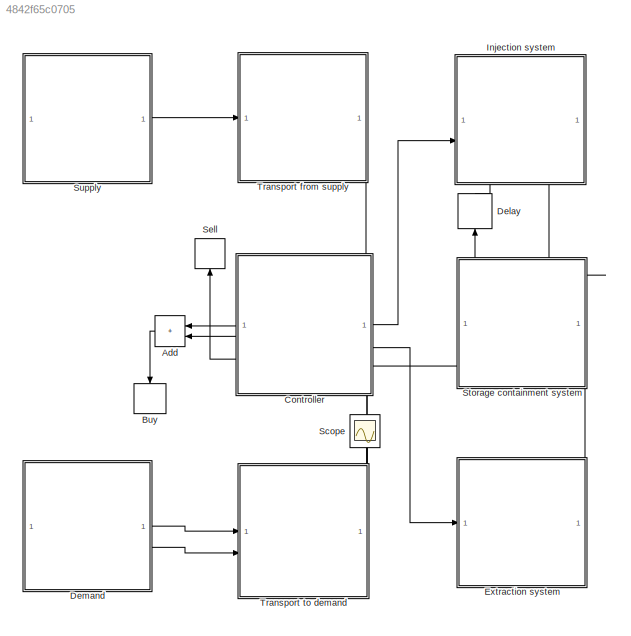
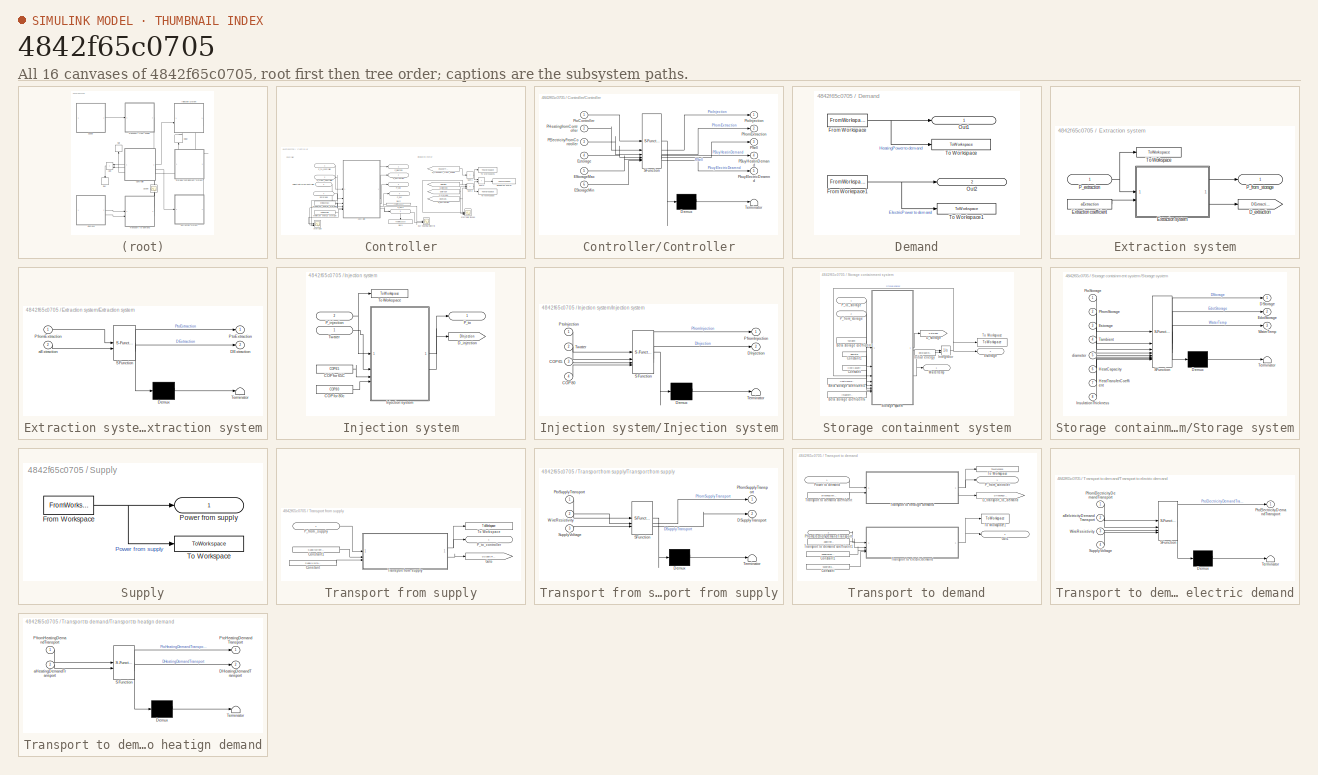
[diagram: thumbnail index - all 16 canvases of the model, root first then tree order]
MODEL slx_4842f65c0705
KIND model
CONFIG AbsTol = auto
CONFIG EnableMultiTasking = off
CONFIG FixedStep = 0.05
CONFIG InitFcn = clear all;\nclose all;\nclc;\n\n% add the data and script directories\naddpath('data','scripts');\n\n% load the constants (units)\nconstants;\n\n% load the simulation parameters \npreprocessing;
CONFIG MaxStep = 0.05
CONFIG MinStep = auto
CONFIG RelTol = 1e-3
CONFIG SampleTimeConstraint = Unconstrained
CONFIG SolverName = FixedStepAuto
CONFIG StartTime = 0.0
CONFIG StopFcn = postprocessing;
CONFIG StopTime = 35040
BLOCK [Sum] Add
  IconShape = rectangular
  NameLocation = top
BLOCK [ToWorkspace] Buy
  FixptAsFi = on
  MaxDataPoints = inf
  NameLocation = left
  SampleTime = -1
  VariableName = PBuy
BLOCK [SubSystem] Controller
  PortSchema = {"entries":[{"content":{"sides":[{"content":{"connectorIds":["Out3","Out4","Out5"]},"type":"ConnectorPlacement.EquallySpacedRectSide","uuid":"4daf33ce-c96a-4783-b5c4-228eed953e01"},{"content":{"connectorIds":["Out1","In4","Out2"],"side":"RIGHT"},"type":"ConnectorPlacement.EquallySpacedRectSide","uuid":"e9942e50-8467-4af8-b79b-80636cbc76e5"},{"content":{"connectorIds":["In1"],"side":"TOP"},"type":"...<+428ch>
BLOCK [ToWorkspace] Controller/Buy1
  FixptAsFi = on
  MaxDataPoints = inf
  NameLocation = left
  SampleTime = -1
  VariableName = PbuyElectricDemand
BLOCK [ToWorkspace] Controller/Buy2
  FixptAsFi = on
  MaxDataPoints = inf
  NameLocation = left
  SampleTime = -1
  VariableName = PbuyHeatingDemand
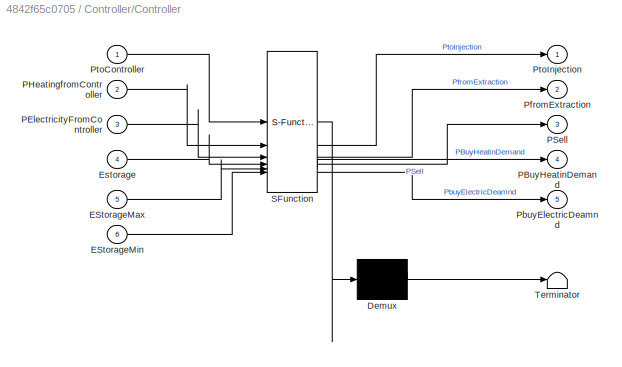
BLOCK [SubSystem] Controller/Controller
  ErrorFcn = Stateflow.Translate.translate
  PermitHierarchicalResolution = ExplicitOnly
  SFBlockType = MATLAB Function
  TreatAsAtomicUnit = on
BLOCK [Demux] Controller/Controller/ Demux 
  Outputs = 1
BLOCK [S-Function] Controller/Controller/ SFunction 
  EnableBusSupport = on
  FunctionName = sf_sfun
  PortCounts = [6 6]
  SFcnIsStateOwnerBlock = off
  SFunctionDeploymentMode = off
  Tag = Stateflow S-Function 3
BLOCK [Terminator] Controller/Controller/ Terminator 
BLOCK [Inport] Controller/Controller/EStorageMax
  Port = 5
BLOCK [Inport] Controller/Controller/EStorageMin
  Port = 6
BLOCK [Inport] Controller/Controller/Estorage
  Port = 4
BLOCK [Outport] Controller/Controller/PBuyHeatinDemand
  Port = 4
BLOCK [Inport] Controller/Controller/PElectricityFromController
  Port = 3
BLOCK [Inport] Controller/Controller/PHeatingfromController
  Port = 2
BLOCK [Outport] Controller/Controller/PSell
  Port = 3
BLOCK [Outport] Controller/Controller/PbuyElectricDeamnd
  Port = 5
BLOCK [Outport] Controller/Controller/PfromExtraction
  Port = 2
BLOCK [Inport] Controller/Controller/PtoController
BLOCK [Outport] Controller/Controller/PtoInjection
BLOCK [From] Controller/D_extraction
  GotoTag = DExtraction
  TagVisibility = global
BLOCK [From] Controller/D_injection
  GotoTag = DInjection
  TagVisibility = global
BLOCK [From] Controller/D_storage
  GotoTag = DStorage
  TagVisibility = global
BLOCK [From] Controller/D_transport_from_supply
  GotoTag = DSupplyTransport
  TagVisibility = global
BLOCK [ToWorkspace] Controller/Dissipated energy
  FixptAsFi = on
  MaxDataPoints = inf
  SampleTime = -1
  VariableName = D
BLOCK [Inport] Controller/Estorage
  IconDisplay = Signal name
  Port = 4
BLOCK [Constant] Controller/Maximum energy storage
  Value = EStorageMax
BLOCK [Constant] Controller/Minimum energy storage
  Value = EStorageMin
BLOCK [Inport] Controller/PElectricityFromController
  Port = 3
BLOCK [Outport] Controller/P_buy
  IconDisplay = Signal name
  Port = 4
BLOCK [Outport] Controller/P_buy1
  IconDisplay = Signal name
  Port = 5
BLOCK [Outport] Controller/P_extraction
  IconDisplay = Signal name
  Port = 2
BLOCK [Inport] Controller/P_from_controller
  IconDisplay = Port number and signal name
  Port = 2
BLOCK [Outport] Controller/P_injection
  IconDisplay = Signal name
BLOCK [Outport] Controller/P_sell
  IconDisplay = Signal name
  Port = 3
BLOCK [Inport] Controller/P_to_controller
  IconDisplay = Port number and signal name
BLOCK [Sum] Controller/Sum1
  IconShape = rectangular
  Inputs = +
BLOCK [Sum] Controller/Sum2
  IconShape = rectangular
  Inputs = +++
BLOCK [Sum] Controller/Sum3
  IconShape = rectangular
BLOCK [ToWorkspace] Controller/To Workspace
  FixptAsFi = on
  MaxDataPoints = inf
  SampleTime = -1
  VariableName = DStorage
BLOCK [ToWorkspace] Controller/To Workspace1
  FixptAsFi = on
  MaxDataPoints = inf
  SampleTime = -1
  VariableName = DTransport
BLOCK [Scope] Controller/buy heating//electric
  Floating = off
  NumInputPorts = 2
  ScopeSpecificationString = Simulink.scopes.TimeScopeBlockCfg('CurrentConfiguration', extmgr.ConfigurationSet(extmgr.Configuration('Core','General UI',true),extmgr.Configuration('Core','Source UI',true),extmgr.Configuration('Sources','WiredSimulink',true,'DataLoggingVariableName','ScopeData1'),extmgr.Configuration('Visuals','Time Domain',true,'SerializedDisplays',{struct('MinYLimReal','-830.45668','MaxYLimReal','7474.1101','...<+1464ch>
BLOCK [Scope] Controller/storrage
  Floating = off
  NumInputPorts = 3
  ScopeSpecificationString = Simulink.scopes.TimeScopeBlockCfg('CurrentConfiguration', extmgr.ConfigurationSet(extmgr.Configuration('Core','General UI',true),extmgr.Configuration('Core','Source UI',true),extmgr.Configuration('Sources','WiredSimulink',true,'DataLoggingVariableName','ScopeData4'),extmgr.Configuration('Visuals','Time Domain',true,'SerializedDisplays',{struct('MinYLimReal','-59016474.27494','MaxYLimReal','5321482...<+1509ch>
BLOCK [Scope] Controller/storrage losses
  Floating = off
  NumInputPorts = 3
  ScopeSpecificationString = Simulink.scopes.TimeScopeBlockCfg('CurrentConfiguration', extmgr.ConfigurationSet(extmgr.Configuration('Core','General UI',true),extmgr.Configuration('Core','Source UI',true),extmgr.Configuration('Sources','WiredSimulink',true,'DataLoggingVariableName','ScopeData1'),extmgr.Configuration('Visuals','Time Domain',true,'SerializedDisplays',{struct('MinYLimReal','-1085.81371','MaxYLimReal','2540.26182'...<+1462ch>
BLOCK [Delay] Delay
  DelayLength = 1
  InitialCondition = 0
  InputPortMap = u0
  NameLocation = right
BLOCK [SubSystem] Demand
BLOCK [FromWorkspace] Demand/From Workspace
  OutputAfterFinalValue = Setting to zero
  VariableName = DemandHeating
BLOCK [FromWorkspace] Demand/From Workspace1
  OutputAfterFinalValue = Setting to zero
  VariableName = DemandElectricity
BLOCK [Outport] Demand/Out1
  IconDisplay = Signal name
BLOCK [Outport] Demand/Out2
  IconDisplay = Signal name
  Port = 2
BLOCK [ToWorkspace] Demand/To Workspace
  FixptAsFi = on
  MaxDataPoints = inf
  SampleTime = -1
  VariableName = PDemandHeating
BLOCK [ToWorkspace] Demand/To Workspace1
  FixptAsFi = on
  MaxDataPoints = inf
  SampleTime = -1
  VariableName = PDemandElectricity
BLOCK [SubSystem] Extraction system
  NameLocation = top
  PortSchema = {"entries":[{"content":{"sides":[{"content":{"connectorIds":[]},"type":"ConnectorPlacement.EquallySpacedRectSide","uuid":"05c5933d-55fc-4e06-853f-fc26d42905f9"},{"content":{"connectorIds":["In1"],"side":"RIGHT"},"type":"ConnectorPlacement.EquallySpacedRectSide","uuid":"327426c5-31d5-498b-a2bd-83e49353408c"},{"content":{"connectorIds":[],"side":"TOP"},"type":"ConnectorPlacement.EquallySpacedRectSid...<+384ch>
BLOCK [Goto] Extraction system/D_extraction
  GotoTag = DExtraction
  TagVisibility = global
BLOCK [Constant] Extraction system/Extraction coefficient
  Value = aExtraction
BLOCK [SubSystem] Extraction system/Extraction system
  ErrorFcn = Stateflow.Translate.translate
  PermitHierarchicalResolution = ExplicitOnly
  SFBlockType = MATLAB Function
  TreatAsAtomicUnit = on
BLOCK [Demux] Extraction system/Extraction system/ Demux 
  Outputs = 1
BLOCK [S-Function] Extraction system/Extraction system/ SFunction 
  EnableBusSupport = on
  FunctionName = sf_sfun
  PortCounts = [2 3]
  SFcnIsStateOwnerBlock = off
  SFunctionDeploymentMode = off
  Tag = Stateflow S-Function 4
BLOCK [Terminator] Extraction system/Extraction system/ Terminator 
BLOCK [Outport] Extraction system/Extraction system/DExtraction
  Port = 2
BLOCK [Inport] Extraction system/Extraction system/PfromExtraction
BLOCK [Outport] Extraction system/Extraction system/PtoExtraction
BLOCK [Inport] Extraction system/Extraction system/aExtraction
  Port = 2
BLOCK [Inport] Extraction system/P_extraction
  IconDisplay = Signal name
BLOCK [Outport] Extraction system/P_from_storage
  IconDisplay = Signal name
BLOCK [ToWorkspace] Extraction system/To Workspace
  FixptAsFi = on
  MaxDataPoints = inf
  SampleTime = -1
  VariableName = PfromExtraction
BLOCK [SubSystem] Injection system
  NameLocation = top
  PortSchema = {"entries":[{"content":{"sides":[{"content":{},"type":"ConnectorPlacement.EquallySpacedRectSide","uuid":"05c5933d-55fc-4e06-853f-fc26d42905f9"},{"content":{"connectorIds":["In2"],"side":"RIGHT"},"type":"ConnectorPlacement.EquallySpacedRectSide","uuid":"327426c5-31d5-498b-a2bd-83e49353408c"},{"content":{"connectorIds":["Out1","In1"],"side":"TOP"},"type":"ConnectorPlacement.EquallySpacedRectSide","u...<+355ch>
BLOCK [Constant] Injection system/COP for 65C
  Value = COP65
BLOCK [Constant] Injection system/COP for 80c
  Value = COP80
BLOCK [Goto] Injection system/D_injection
  GotoTag = DInjection
  TagVisibility = global
BLOCK [SubSystem] Injection system/Injection system
  ErrorFcn = Stateflow.Translate.translate
  PermitHierarchicalResolution = ExplicitOnly
  SFBlockType = MATLAB Function
  TreatAsAtomicUnit = on
BLOCK [Demux] Injection system/Injection system/ Demux 
  Outputs = 1
BLOCK [S-Function] Injection system/Injection system/ SFunction 
  EnableBusSupport = on
  FunctionName = sf_sfun
  PortCounts = [4 3]
  SFcnIsStateOwnerBlock = off
  SFunctionDeploymentMode = off
  Tag = Stateflow S-Function 1
BLOCK [Terminator] Injection system/Injection system/ Terminator 
BLOCK [Inport] Injection system/Injection system/COP65
  Port = 3
BLOCK [Inport] Injection system/Injection system/COP80
  Port = 4
BLOCK [Outport] Injection system/Injection system/DInjection
  Port = 2
BLOCK [Outport] Injection system/Injection system/PfromInjection
BLOCK [Inport] Injection system/Injection system/PtoInjection
BLOCK [Inport] Injection system/Injection system/Twater
  Port = 2
BLOCK [Inport] Injection system/P_injection
  IconDisplay = Signal name
  Port = 2
BLOCK [Outport] Injection system/P_to
  IconDisplay = Port number and signal name
BLOCK [ToWorkspace] Injection system/To Workspace
  FixptAsFi = on
  MaxDataPoints = inf
  SampleTime = -1
  VariableName = PtoInjection
BLOCK [Inport] Injection system/Twater
  IconDisplay = Signal name
BLOCK [Scope] Scope
  Floating = off
  NumInputPorts = 2
  ScopeSpecificationString = Simulink.scopes.TimeScopeBlockCfg('CurrentConfiguration', extmgr.ConfigurationSet(extmgr.Configuration('Core','General UI',true),extmgr.Configuration('Core','Source UI',true),extmgr.Configuration('Sources','WiredSimulink',true,'DataLoggingVariableName','ScopeData1'),extmgr.Configuration('Visuals','Time Domain',true,'SerializedDisplays',{struct('MinYLimReal','-833.84656','MaxYLimReal','7587.97633',...<+1555ch>
BLOCK [ToWorkspace] Sell
  FixptAsFi = on
  MaxDataPoints = inf
  NameLocation = right
  SampleTime = -1
  VariableName = PSell
BLOCK [SubSystem] Storage containment system
  PortSchema = {"entries":[{"content":{"sides":[{"content":{"connectorIds":["Out1","Out2"]},"type":"ConnectorPlacement.EquallySpacedRectSide","uuid":"0ba48424-33b9-4934-970f-64fe5d8b070e"},{"content":{"side":"RIGHT"},"type":"ConnectorPlacement.EquallySpacedRectSide","uuid":"9cde340f-8f39-4499-9a12-5e1623737660"},{"content":{"connectorIds":["In1"],"side":"TOP"},"type":"ConnectorPlacement.EquallySpacedRectSide","u...<+378ch>
BLOCK [Constant] Storage containment system/Beta storage coefficient1
  Value = Tambient
BLOCK [Constant] Storage containment system/Beta storage coefficient5
  Value = HeatTransferCoefficient
BLOCK [Constant] Storage containment system/Beta storage coefficient6
  Value = InsulationThickness
BLOCK [Constant] Storage containment system/Constant
  Value = HeatCapacity
BLOCK [Constant] Storage containment system/Constant1
  Value = diameter
BLOCK [Goto] Storage containment system/D_storage
  GotoTag = DStorage
  TagVisibility = global
BLOCK [Outport] Storage containment system/Estorage
  IconDisplay = Signal name
  Port = 2
BLOCK [Constant] Storage containment system/Initial energy
  Value = EStorageInitial
BLOCK [Integrator] Storage containment system/Integrator
  InitialConditionSource = external
BLOCK [Inport] Storage containment system/P_from_storage
  IconDisplay = Port number and signal name
  Port = 2
BLOCK [Inport] Storage containment system/P_to_storage
  IconDisplay = Port number and signal name
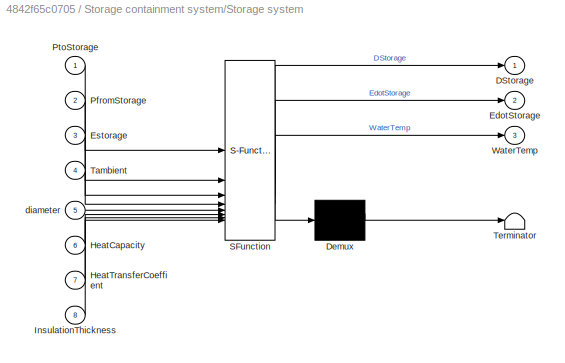
BLOCK [SubSystem] Storage containment system/Storage system
  ErrorFcn = Stateflow.Translate.translate
  PermitHierarchicalResolution = ExplicitOnly
  SFBlockType = MATLAB Function
  TreatAsAtomicUnit = on
BLOCK [Demux] Storage containment system/Storage system/ Demux 
  Outputs = 1
BLOCK [S-Function] Storage containment system/Storage system/ SFunction 
  EnableBusSupport = on
  FunctionName = sf_sfun
  PortCounts = [8 4]
  SFcnIsStateOwnerBlock = off
  SFunctionDeploymentMode = off
  Tag = Stateflow S-Function 5
BLOCK [Terminator] Storage containment system/Storage system/ Terminator 
BLOCK [Outport] Storage containment system/Storage system/DStorage
BLOCK [Outport] Storage containment system/Storage system/EdotStorage
  Port = 2
BLOCK [Inport] Storage containment system/Storage system/Estorage
  Port = 3
BLOCK [Inport] Storage containment system/Storage system/HeatCapacity
  Port = 6
BLOCK [Inport] Storage containment system/Storage system/HeatTransferCoeffient
  Port = 7
BLOCK [Inport] Storage containment system/Storage system/InsulationThickness
  Port = 8
BLOCK [Inport] Storage containment system/Storage system/PfromStorage
  Port = 2
BLOCK [Inport] Storage containment system/Storage system/PtoStorage
BLOCK [Inport] Storage containment system/Storage system/Tambient
  Port = 4
BLOCK [Outport] Storage containment system/Storage system/WaterTemp
  Port = 3
BLOCK [Inport] Storage containment system/Storage system/diameter
  Port = 5
BLOCK [ToWorkspace] Storage containment system/To Workspace
  FixptAsFi = on
  MaxDataPoints = inf
  SampleTime = -1
  VariableName = EStorage
BLOCK [Outport] Storage containment system/Watertemp
  IconDisplay = Signal name
BLOCK [SubSystem] Supply
BLOCK [FromWorkspace] Supply/From Workspace
  OutputAfterFinalValue = Setting to zero
  VariableName = Supply
BLOCK [Outport] Supply/Power from supply
  IconDisplay = Signal name
BLOCK [ToWorkspace] Supply/To Workspace
  MaxDataPoints = inf
  SampleTime = -1
  VariableName = PSupply
BLOCK [SubSystem] Transport from supply
  PortSchema = {"entries":[{"content":{"sides":[{"content":{"connectorIds":["In1"]},"type":"ConnectorPlacement.EquallySpacedRectSide","uuid":"31329006-3d36-4d93-9c44-7503a515d397"},{"content":{"connectorIds":[],"side":"RIGHT"},"type":"ConnectorPlacement.EquallySpacedRectSide","uuid":"aba139c7-f9b6-4881-a56b-a4cbbedacd88"},{"content":{"connectorIds":[],"side":"TOP"},"type":"ConnectorPlacement.EquallySpacedRectSid...<+384ch>
BLOCK [Constant] Transport from supply/Constant
  SampleTime = -1
  Value = SupplyVoltage
  VectorParams1D = off
BLOCK [Constant] Transport from supply/Constant1
  SampleTime = -1
  Value = SupplyWireRestance
BLOCK [Goto] Transport from supply/Goto
  GotoTag = DSupplyTransport
  TagVisibility = global
BLOCK [Inport] Transport from supply/P_from_supply
  IconDisplay = Signal name
BLOCK [Outport] Transport from supply/P_to_controller
  IconDisplay = Signal name
BLOCK [ToWorkspace] Transport from supply/To Workspace
  MaxDataPoints = inf
  SampleTime = -1
  VariableName = PfromSupplyTransport
BLOCK [SubSystem] Transport from supply/Transport from supply
  ErrorFcn = Stateflow.Translate.translate
  PermitHierarchicalResolution = ExplicitOnly
  SFBlockType = MATLAB Function
  TreatAsAtomicUnit = on
BLOCK [Demux] Transport from supply/Transport from supply/ Demux 
  Outputs = 1
BLOCK [S-Function] Transport from supply/Transport from supply/ SFunction 
  EnableBusSupport = on
  FunctionName = sf_sfun
  PortCounts = [3 3]
  SFcnIsStateOwnerBlock = off
  SFunctionDeploymentMode = off
  Tag = Stateflow S-Function 2
BLOCK [Terminator] Transport from supply/Transport from supply/ Terminator 
BLOCK [Outport] Transport from supply/Transport from supply/DSupplyTransport
  Port = 2
BLOCK [Outport] Transport from supply/Transport from supply/PfromSupplyTransport
BLOCK [Inport] Transport from supply/Transport from supply/PtoSupplyTransport
BLOCK [Inport] Transport from supply/Transport from supply/SupplyVoltage
  Port = 3
BLOCK [Inport] Transport from supply/Transport from supply/WireResistivity
  Port = 2
BLOCK [SubSystem] Transport to demand
  PortSchema = {"entries":[{"content":{"sides":[{"content":{"connectorIds":["In1","In2"]},"type":"ConnectorPlacement.EquallySpacedRectSide","uuid":"03dcb471-e366-4ed9-a75b-6b53ae3db544"},{"content":{"side":"RIGHT"},"type":"ConnectorPlacement.EquallySpacedRectSide","uuid":"6dd80e9d-b764-41ba-981e-efa62bb14601"},{"content":{"connectorIds":["Out1","Out2"],"side":"TOP"},"type":"ConnectorPlacement.EquallySpacedRectSi...<+235ch>
BLOCK [Constant] Transport to demand/Constant
  SampleTime = -1
  Value = SupplyVoltage
  VectorParams1D = off
BLOCK [Constant] Transport to demand/Constant1
  SampleTime = -1
  Value = SupplyWireRestance
BLOCK [Goto] Transport to demand/D_transport_to_demand
  GotoTag = DHeatingDemandTransport
  TagVisibility = global
BLOCK [Outport] Transport to demand/Out1
  IconDisplay = Signal name
  Port = 2
BLOCK [Outport] Transport to demand/P_from_controler
  IconDisplay = Signal name
BLOCK [Inport] Transport to demand/PfromElectricityDemandTransportt
  IconDisplay = Signal name
  Port = 2
BLOCK [Inport] Transport to demand/Power to demand
  IconDisplay = Port number and signal name
BLOCK [ToWorkspace] Transport to demand/To Workspace
  MaxDataPoints = inf
  SampleTime = -1
  VariableName = PtoHeatingDemandTransport
BLOCK [ToWorkspace] Transport to demand/To Workspace1
  FixptAsFi = on
  MaxDataPoints = inf
  SampleTime = -1
  VariableName = PtoElectricityDemandTransport
BLOCK [Constant] Transport to demand/Transport to demand coefficient
  Value = aHeatingDemandTransport
BLOCK [Constant] Transport to demand/Transport to demand coefficient1
  Value = aElectricityDemandTransport
BLOCK [SubSystem] Transport to demand/Transport to electric demand
  ErrorFcn = Stateflow.Translate.translate
  PermitHierarchicalResolution = ExplicitOnly
  SFBlockType = MATLAB Function
  TreatAsAtomicUnit = on
BLOCK [Demux] Transport to demand/Transport to electric demand/ Demux 
  Outputs = 1
BLOCK [S-Function] Transport to demand/Transport to electric demand/ SFunction 
  EnableBusSupport = on
  FunctionName = sf_sfun
  PortCounts = [4 2]
  SFcnIsStateOwnerBlock = off
  SFunctionDeploymentMode = off
  Tag = Stateflow S-Function 6
BLOCK [Terminator] Transport to demand/Transport to electric demand/ Terminator 
BLOCK [Inport] Transport to demand/Transport to electric demand/PfromElectricityDemandTransport
BLOCK [Outport] Transport to demand/Transport to electric demand/PtoElectricityDemandTransport
BLOCK [Inport] Transport to demand/Transport to electric demand/SupplyVoltage
  Port = 4
BLOCK [Inport] Transport to demand/Transport to electric demand/WireResistivity
  Port = 3
BLOCK [Inport] Transport to demand/Transport to electric demand/aEelctricityDemandTransport
  Port = 2
BLOCK [SubSystem] Transport to demand/Transport to heatign demand
  ErrorFcn = Stateflow.Translate.translate
  PermitHierarchicalResolution = ExplicitOnly
  SFBlockType = MATLAB Function
  TreatAsAtomicUnit = on
BLOCK [Demux] Transport to demand/Transport to heatign demand/ Demux 
  Outputs = 1
BLOCK [S-Function] Transport to demand/Transport to heatign demand/ SFunction 
  EnableBusSupport = on
  FunctionName = sf_sfun
  PortCounts = [2 3]
  SFcnIsStateOwnerBlock = off
  SFunctionDeploymentMode = off
  Tag = Stateflow S-Function 7
BLOCK [Terminator] Transport to demand/Transport to heatign demand/ Terminator 
BLOCK [Outport] Transport to demand/Transport to heatign demand/DHeatingDemandTransport
  Port = 2
BLOCK [Inport] Transport to demand/Transport to heatign demand/PfromHeatingDemandTransport
BLOCK [Outport] Transport to demand/Transport to heatign demand/PtoHeatingDemandTransport
BLOCK [Inport] Transport to demand/Transport to heatign demand/aHeatingDemandTransport
  Port = 2
ANNOTATION Controller: Controller
ANNOTATION Controller: Dissipated energy
LINE Add:1 -> Buy:1
LINE Controller/Controller:1 -> Controller/P_injection:1
LINE Controller/Controller:2 -> Controller/P_extraction:1
LINE Controller/Controller:3 -> Controller/P_sell:1
NET Controller/Controller:4 -> Controller/Buy2:1, Controller/P_buy:1, Controller/buy heating//electric:1
NET Controller/Controller:5 -> Controller/Buy1:1, Controller/P_buy1:1, Controller/buy heating//electric:2
NET Controller/D_extraction:1 -> Controller/Sum2:3, Controller/storrage losses:3
NET Controller/D_injection:1 -> Controller/Sum2:1, Controller/storrage losses:1
NET Controller/D_storage:1 -> Controller/Sum2:2, Controller/storrage losses:2
LINE Controller/D_transport_from_supply:1 -> Controller/Sum1:1
NET Controller/Estorage:1 -> Controller/Controller:4, Controller/storrage:3
NET Controller/Maximum energy storage:1 -> Controller/Controller:5, Controller/storrage:2
NET Controller/Minimum energy storage:1 -> Controller/Controller:6, Controller/storrage:1
LINE Controller/PElectricityFromController:1 -> Controller/Controller:3
LINE Controller/P_from_controller:1 -> Controller/Controller:2
LINE Controller/P_to_controller:1 -> Controller/Controller:1
NET Controller/Sum1:1 -> Controller/Sum3:1, Controller/To Workspace1:1
NET Controller/Sum2:1 -> Controller/Sum3:2, Controller/To Workspace:1
LINE Controller/Sum3:1 -> Controller/Dissipated energy:1
LINE Controller:1 -> Injection system:2
LINE Controller:2 -> Extraction system:1
LINE Controller:3 -> Sell:1
LINE Controller:4 -> Add:1
LINE Controller:5 -> Add:2
LINE Delay:1 -> Injection system:1
NET Demand/From Workspace1:1 -> Demand/Out2:1, Demand/To Workspace1:1
NET Demand/From Workspace:1 -> Demand/Out1:1, Demand/To Workspace:1
LINE Demand:1 -> Transport to demand:1
LINE Demand:2 -> Transport to demand:2
LINE Extraction system/Extraction coefficient:1 -> Extraction system/Extraction system:2
LINE Extraction system/Extraction system:1 -> Extraction system/P_from_storage:1
LINE Extraction system/Extraction system:2 -> Extraction system/D_extraction:1
NET Extraction system/P_extraction:1 -> Extraction system/Extraction system:1, Extraction system/To Workspace:1
LINE Extraction system:1 -> Storage containment system:2
LINE Injection system/COP for 65C:1 -> Injection system/Injection system:3
LINE Injection system/COP for 80c:1 -> Injection system/Injection system:4
LINE Injection system/Injection system:1 -> Injection system/P_to:1
LINE Injection system/Injection system:2 -> Injection system/D_injection:1
NET Injection system/P_injection:1 -> Injection system/Injection system:1, Injection system/To Workspace:1
LINE Injection system/Twater:1 -> Injection system/Injection system:2
LINE Injection system:1 -> Storage containment system:1
LINE Storage containment system/Beta storage coefficient1:1 -> Storage containment system/Storage system:4
LINE Storage containment system/Beta storage coefficient5:1 -> Storage containment system/Storage system:7
LINE Storage containment system/Beta storage coefficient6:1 -> Storage containment system/Storage system:8
LINE Storage containment system/Constant1:1 -> Storage containment system/Storage system:5
LINE Storage containment system/Constant:1 -> Storage containment system/Storage system:6
LINE Storage containment system/Initial energy:1 -> Storage containment system/Integrator:2
NET Storage containment system/Integrator:1 -> Storage containment system/Estorage:1, Storage containment system/Storage system:3, Storage containment system/To Workspace:1
LINE Storage containment system/P_from_storage:1 -> Storage containment system/Storage system:2
LINE Storage containment system/P_to_storage:1 -> Storage containment system/Storage system:1
LINE Storage containment system/Storage system:1 -> Storage containment system/D_storage:1
LINE Storage containment system/Storage system:2 -> Storage containment system/Integrator:1
LINE Storage containment system/Storage system:3 -> Storage containment system/Watertemp:1
LINE Storage containment system:1 -> Delay:1
LINE Storage containment system:2 -> Controller:4
NET Supply/From Workspace:1 -> Supply/Power from supply:1, Supply/To Workspace:1
LINE Supply:1 -> Transport from supply:1
LINE Transport from supply/Constant1:1 -> Transport from supply/Transport from supply:2
LINE Transport from supply/Constant:1 -> Transport from supply/Transport from supply:3
LINE Transport from supply/P_from_supply:1 -> Transport from supply/Transport from supply:1
NET Transport from supply/Transport from supply:1 -> Transport from supply/P_to_controller:1, Transport from supply/To Workspace:1
LINE Transport from supply/Transport from supply:2 -> Transport from supply/Goto:1
LINE Transport from supply:1 -> Controller:1
LINE Transport to demand/Constant1:1 -> Transport to demand/Transport to electric demand:3
LINE Transport to demand/Constant:1 -> Transport to demand/Transport to electric demand:4
LINE Transport to demand/PfromElectricityDemandTransportt:1 -> Transport to demand/Transport to electric demand:1
LINE Transport to demand/Power to demand:1 -> Transport to demand/Transport to heatign demand:1
LINE Transport to demand/Transport to demand coefficient1:1 -> Transport to demand/Transport to electric demand:2
LINE Transport to demand/Transport to demand coefficient:1 -> Transport to demand/Transport to heatign demand:2
NET Transport to demand/Transport to electric demand:1 -> Transport to demand/Out1:1, Transport to demand/To Workspace1:1
NET Transport to demand/Transport to heatign demand:1 -> Transport to demand/P_from_controler:1, Transport to demand/To Workspace:1
LINE Transport to demand/Transport to heatign demand:2 -> Transport to demand/D_transport_to_demand:1
NET Transport to demand:1 -> Controller:2, Scope:2
NET Transport to demand:2 -> Controller:3, Scope:1
note: NET lines group one-source signal fan-out (src -> all destinations, sorted); 1:1 wires keep LINE
CHART Transport to demand/Transport to heatign demand states=1 transitions=1
  STATE_LABEL 'eML_blk_kernel()'
  STATE_LABEL 'SCRIPT:\nfunction [PtoHeatingDemandTransport, DHeatingDemandTransport] = demandTransport(PfromHeatingDemandTransport,aHeatingDemandTransport)\n\n    DHeatingDemandTransport = aHeatingDemandTransport / (1-aHeatingDemandTransport) * PfromHeatingDemandTransport;\n    PtoHeatingDemandTransport = PfromHeatingDemandTransport + DHeatingDemandTransport;'
CHART Injection system/Injection system states=1 transitions=1
  STATE_LABEL 'eML_blk_kernel()'
  STATE_LABEL 'SCRIPT:\nfunction [PfromInjection, DInjection] = injection(PtoInjection, Twater, COP65, COP80)\n    if Twater<65\n        COP = COP65;\n    else \n        COP = (COP80-COP65)/15*(Twater-65)+COP65;\n    end\n    DInjection = 0;\n    PfromInjection = PtoInjection*COP;'
CHART Transport from supply/Transport from supply states=1 transitions=1
  STATE_LABEL 'eML_blk_kernel()'
  STATE_LABEL 'SCRIPT:\nfunction [PfromSupplyTransport, DSupplyTransport]= supplyTransport(PtoSupplyTransport, WireResistivity ,SupplyVoltage)\n    Current = PtoSupplyTransport/SupplyVoltage;\n    Ploss = WireResistivity * Current^2;\n\n    DSupplyTransport = Ploss;\n    PfromSupplyTransport = PtoSupplyTransport - DSupplyTransport;'
CHART Controller/Controller states=1 transitions=1
  STATE_LABEL 'eML_blk_kernel()'
  STATE_LABEL 'SCRIPT:\nfunction [PtoInjection, PfromExtraction, PSell, PBuyHeatinDemand,PbuyElectricDeamnd] = controller(PtoController, PHeatingfromController, PElectricityFromController, Estorage, EStorageMax, EStorageMin)\n    \n    %% Reset all outputs to zero\n    PBuyHeatinDemand = 0;\n    PtoInjection = 0;\n    PSell = 0;\n    PbuyElectricDeamnd = 0;\n\n    %% Handle electric power from solar vs need\n    if PElect...<+1527ch>'
CHART Extraction system/Extraction system states=1 transitions=1
  STATE_LABEL 'eML_blk_kernel()'
  STATE_LABEL 'SCRIPT:\nfunction [PtoExtraction, DExtraction] = extraction(PfromExtraction, aExtraction)\n    DExtraction = aExtraction / (1-aExtraction) * PfromExtraction;\n    PtoExtraction = PfromExtraction + DExtraction;\n'
CHART Storage containment system/Storage system states=1 transitions=1
  STATE_LABEL 'eML_blk_kernel()'
  STATE_LABEL 'SCRIPT:\nfunction [DStorage, EdotStorage, WaterTemp]= ...\n    Storage(PtoStorage, PfromStorage, Estorage, Tambient, diameter, HeatCapacity, HeatTransferCoeffient, InsulationThickness)\n\n    WaterTemp = Estorage/(HeatCapacity);\n    Area = pi * diameter;\n\n    DStorage = (WaterTemp-Tambient)*Area*HeatTransferCoeffient/InsulationThickness;\n    EdotStorage = PtoStorage - PfromStorage - DStorage;\n'
CHART Transport to demand/Transport to electric demand states=1 transitions=1
  STATE_LABEL 'eML_blk_kernel()'
  STATE_LABEL 'SCRIPT:\nfunction PtoElectricityDemandTransport  = demandTransport(PfromElectricityDemandTransport,aEelctricityDemandTransport,WireResistivity,SupplyVoltage)\n\n    Current = PfromElectricityDemandTransport/SupplyVoltage;\n    lossWire = WireResistivity * Current^2;\n\n    PfromElectricityDemandTransport = PfromElectricityDemandTransport * (1 - lossWire);\n\n    DElectricityDemandTransport = aEelctricityD...<+182ch>'
CHART  states=0 transitions=0
CHART  states=0 transitions=0
CHART  states=0 transitions=0
CHART  states=0 transitions=0
CHART  states=0 transitions=0
CHART  states=0 transitions=0
CHART  states=0 transitions=0
